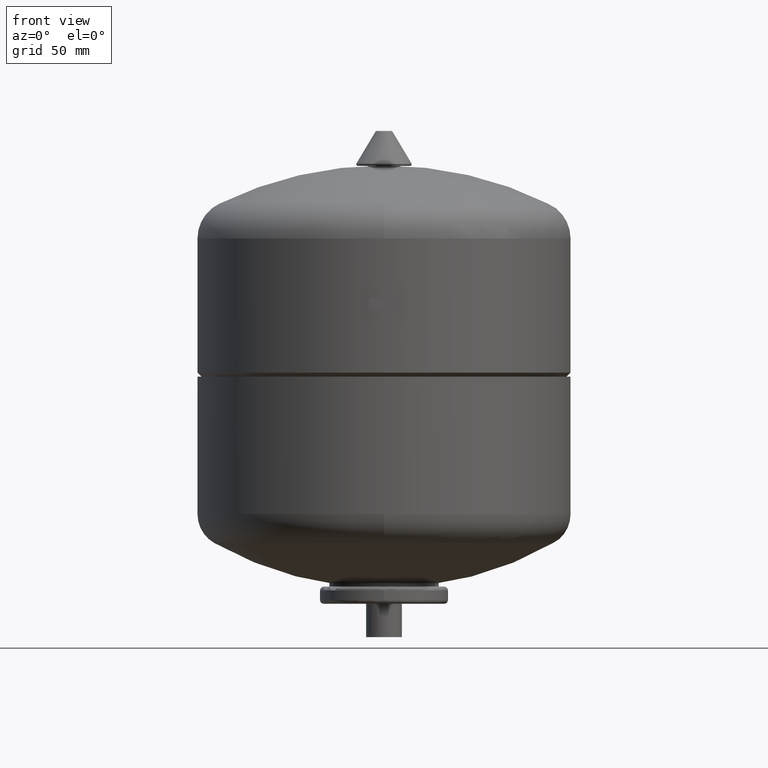
[diagram: clean part render]
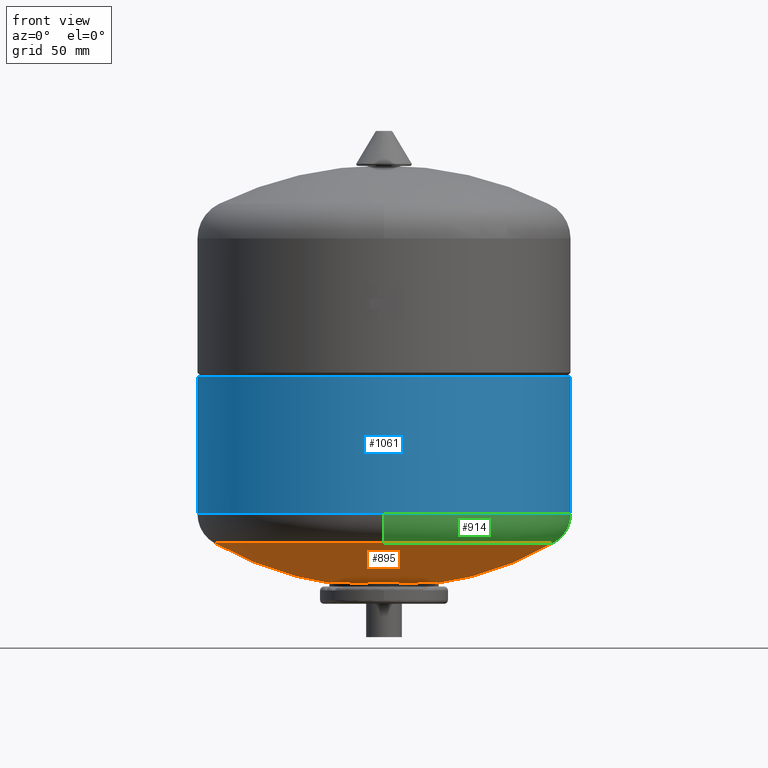
[diagram: same view with three faces highlighted in distinct colors, each labeled with its STEP entity id]
A machine part, front view with three faces highlighted in distinct colors.
Their STEP definitions:

[orange] entity #895 — the highlighted spherical surface has radius 258 mm.
#834=CARTESIAN_POINT('',(3.355614E-015,-127.339055793991430,70.614695513510156));
#835=VERTEX_POINT('',#834);
#851=CARTESIAN_POINT('',(-1.223841E-014,127.339055793991430,70.614695513510213));
#852=VERTEX_POINT('',#851);
#860=CARTESIAN_POINT('',(-127.339055793991450,4.112114E-015,70.614695513510199));
#861=VERTEX_POINT('',#860);
#862=CARTESIAN_POINT('',(-4.148636E-015,4.112114E-015,70.614695513510185));
#863=DIRECTION('',(0.0,0.0,1.0));
#864=DIRECTION('',(-1.0,0.0,0.0));
#865=AXIS2_PLACEMENT_3D('',#862,#863,#864);
#866=CIRCLE('',#865,127.339055793991430);
#867=EDGE_CURVE('',#852,#861,#866,.T.);
#869=CARTESIAN_POINT('',(-4.148636E-015,4.112114E-015,70.614695513510185));
#870=DIRECTION('',(0.0,0.0,1.0));
#871=DIRECTION('',(-1.0,0.0,0.0));
#872=AXIS2_PLACEMENT_3D('',#869,#870,#871);
#873=CIRCLE('',#872,127.339055793991430);
#874=EDGE_CURVE('',#861,#835,#873,.T.);
#879=CARTESIAN_POINT('',(-4.947573E-014,-3.710680E-014,295.000000000000060));
#880=DIRECTION('',(0.0,-1.0,0.0));
#881=DIRECTION('',(1.0,0.0,0.0));
#882=AXIS2_PLACEMENT_3D('',#879,#880,#881);
#883=SPHERICAL_SURFACE('',#882,258.000000000000060);
#884=ORIENTED_EDGE('',*,*,#874,.F.);
#885=ORIENTED_EDGE('',*,*,#867,.F.);
#886=CARTESIAN_POINT('',(-4.148636E-015,4.112114E-015,70.614695513510185));
#887=DIRECTION('',(0.0,0.0,1.0));
#888=DIRECTION('',(-1.0,0.0,0.0));
#889=AXIS2_PLACEMENT_3D('',#886,#887,#888);
#890=CIRCLE('',#889,127.339055793991430);
#891=EDGE_CURVE('',#835,#852,#890,.T.);
#892=ORIENTED_EDGE('',*,*,#891,.F.);
#893=EDGE_LOOP('',(#884,#885,#892));
#894=FACE_OUTER_BOUND('',#893,.T.);
#895=ADVANCED_FACE('',(#894),#883,.T.);

[blue] entity #1061 — the highlighted cylindrical surface (partial cylindrical patch) has radius 140 mm, axis along (0, 0, 1).
#1020=CARTESIAN_POINT('',(0.0,0.0,144.249999999999940));
#1021=DIRECTION('',(0.0,0.0,1.0));
#1022=DIRECTION('',(1.0,0.0,0.0));
#1023=AXIS2_PLACEMENT_3D('',#1020,#1021,#1022);
#1024=CYLINDRICAL_SURFACE('',#1023,139.999999999999970);
#1025=CARTESIAN_POINT('',(139.999999999999970,0.0,195.499999999999940));
#1026=VERTEX_POINT('',#1025);
#1027=CARTESIAN_POINT('',(139.999999999999940,0.0,92.999999999999915));
#1028=VERTEX_POINT('',#1027);
#1029=CARTESIAN_POINT('',(139.999999999999970,0.0,195.499999999999940));
#1030=DIRECTION('',(0.0,0.0,-1.0));
#1031=VECTOR('',#1030,102.500000000000030);
#1032=LINE('',#1029,#1031);
#1033=EDGE_CURVE('',#1026,#1028,#1032,.T.);
#1034=ORIENTED_EDGE('',*,*,#1033,.F.);
#1035=CARTESIAN_POINT('',(-139.999999999999970,-1.714449E-014,195.499999999999940));
#1036=VERTEX_POINT('',#1035);
#1037=CARTESIAN_POINT('',(0.0,0.0,195.499999999999940));
#1038=DIRECTION('',(0.0,0.0,1.0));
#1039=DIRECTION('',(1.0,0.0,0.0));
#1040=AXIS2_PLACEMENT_3D('',#1037,#1038,#1039);
#1041=CIRCLE('',#1040,139.999999999999970);
#1042=EDGE_CURVE('',#1036,#1026,#1041,.T.);
#1043=ORIENTED_EDGE('',*,*,#1042,.F.);
#1044=CARTESIAN_POINT('',(-139.999999999999970,-1.714449E-014,92.999999999999915));
#1045=VERTEX_POINT('',#1044);
#1046=CARTESIAN_POINT('',(-139.999999999999970,-1.714449E-014,195.499999999999940));
#1047=DIRECTION('',(0.0,0.0,-1.0));
#1048=VECTOR('',#1047,102.500000000000030);
#1049=LINE('',#1046,#1048);
#1050=EDGE_CURVE('',#1036,#1045,#1049,.T.);
#1051=ORIENTED_EDGE('',*,*,#1050,.T.);
#1052=CARTESIAN_POINT('',(0.0,0.0,92.999999999999915));
#1053=DIRECTION('',(0.0,0.0,1.0));
#1054=DIRECTION('',(1.0,0.0,0.0));
#1055=AXIS2_PLACEMENT_3D('',#1052,#1053,#1054);
#1056=CIRCLE('',#1055,139.999999999999940);
#1057=EDGE_CURVE('',#1045,#1028,#1056,.T.);
#1058=ORIENTED_EDGE('',*,*,#1057,.T.);
#1059=EDGE_LOOP('',(#1034,#1043,#1051,#1058));
#1060=FACE_OUTER_BOUND('',#1059,.T.);
#1061=ADVANCED_FACE('',(#1060),#1024,.T.);

[green] entity #914 — the highlighted toroidal blend (fillet) surface has major radius 115 mm and minor (blend) radius 25 mm.
#800=CARTESIAN_POINT('',(140.0,1.726252E-014,92.357457576154530));
#801=VERTEX_POINT('',#800);
#808=CARTESIAN_POINT('',(-9.759320E-015,140.0,92.357457576154587));
#809=VERTEX_POINT('',#808);
#810=CARTESIAN_POINT('',(-1.190815E-016,1.180331E-016,92.357457576154559));
#811=DIRECTION('',(0.0,0.0,1.0));
#812=DIRECTION('',(-1.0,0.0,0.0));
#813=AXIS2_PLACEMENT_3D('',#810,#811,#812);
#814=CIRCLE('',#813,140.0);
#815=EDGE_CURVE('',#801,#809,#814,.T.);
#832=CARTESIAN_POINT('',(7.385169E-015,-140.0,92.357457576154530));
#833=VERTEX_POINT('',#832);
#834=CARTESIAN_POINT('',(3.355614E-015,-127.339055793991430,70.614695513510156));
#835=VERTEX_POINT('',#834);
#836=CARTESIAN_POINT('',(7.385169E-015,-115.000000000000010,92.357457576154559));
#837=DIRECTION('',(1.0,0.0,0.0));
#838=DIRECTION('',(0.0,-1.0,0.0));
#839=AXIS2_PLACEMENT_3D('',#836,#837,#838);
#840=CIRCLE('',#839,25.0);
#841=EDGE_CURVE('',#833,#835,#840,.T.);
#851=CARTESIAN_POINT('',(-1.223841E-014,127.339055793991430,70.614695513510213));
#852=VERTEX_POINT('',#851);
#853=CARTESIAN_POINT('',(-6.697804E-015,115.000000000000010,92.357457576154616));
#854=DIRECTION('',(-1.0,0.0,0.0));
#855=DIRECTION('',(0.0,1.0,0.0));
#856=AXIS2_PLACEMENT_3D('',#853,#854,#855);
#857=CIRCLE('',#856,25.0);
#858=EDGE_CURVE('',#809,#852,#857,.T.);
#886=CARTESIAN_POINT('',(-4.148636E-015,4.112114E-015,70.614695513510185));
#887=DIRECTION('',(0.0,0.0,1.0));
#888=DIRECTION('',(-1.0,0.0,0.0));
#889=AXIS2_PLACEMENT_3D('',#886,#887,#888);
#890=CIRCLE('',#889,127.339055793991430);
#891=EDGE_CURVE('',#835,#852,#890,.T.);
#896=CARTESIAN_POINT('',(7.385169E-015,1.180331E-016,92.357457576154587));
#897=DIRECTION('',(1.853286E-016,-1.836970E-016,1.0));
#898=DIRECTION('',(0.0,-1.0,0.0));
#899=AXIS2_PLACEMENT_3D('',#896,#897,#898);
#900=TOROIDAL_SURFACE('',#899,115.000000000000010,25.0);
#901=ORIENTED_EDGE('',*,*,#841,.T.);
#902=ORIENTED_EDGE('',*,*,#891,.T.);
#903=ORIENTED_EDGE('',*,*,#858,.F.);
#904=ORIENTED_EDGE('',*,*,#815,.F.);
#905=CARTESIAN_POINT('',(-1.190815E-016,1.180331E-016,92.357457576154559));
#906=DIRECTION('',(0.0,0.0,1.0));
#907=DIRECTION('',(-1.0,0.0,0.0));
#908=AXIS2_PLACEMENT_3D('',#905,#906,#907);
#909=CIRCLE('',#908,140.0);
#910=EDGE_CURVE('',#833,#801,#909,.T.);
#911=ORIENTED_EDGE('',*,*,#910,.F.);
#912=EDGE_LOOP('',(#901,#902,#903,#904,#911));
#913=FACE_OUTER_BOUND('',#912,.T.);
#914=ADVANCED_FACE('',(#913),#900,.T.);